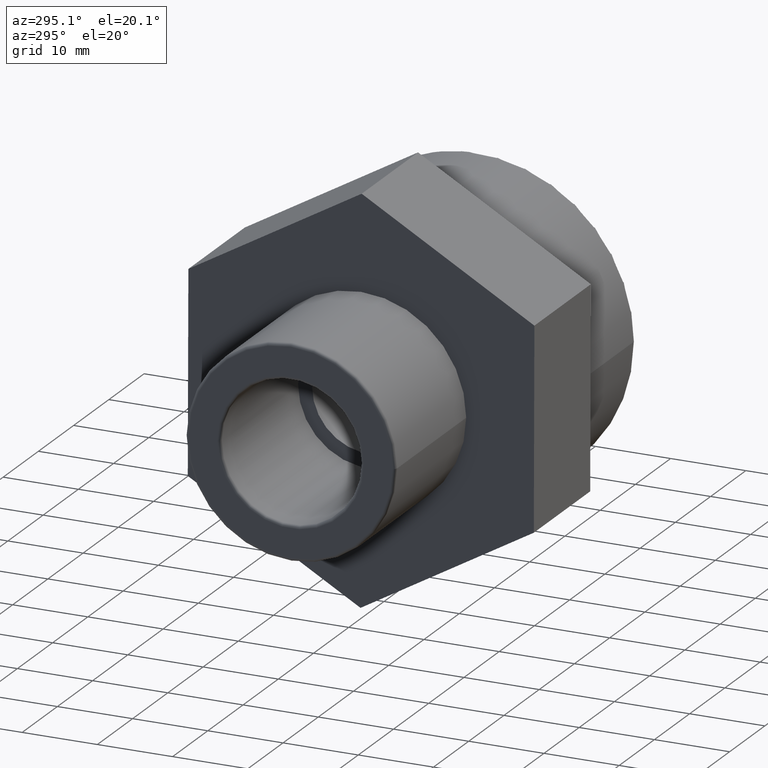
[diagram: clean part render]
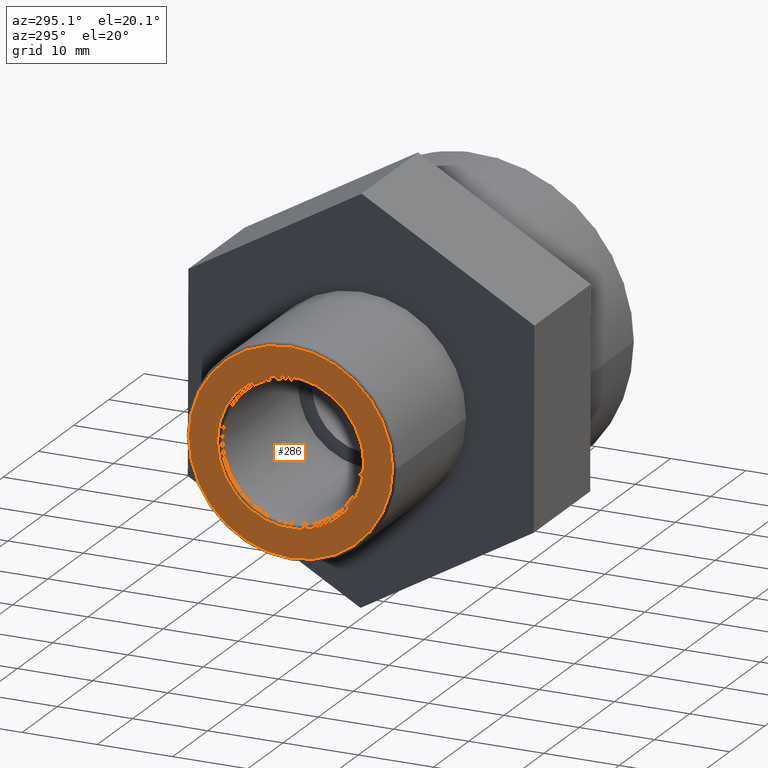
[diagram: same view with one face highlighted and labeled with its STEP entity id]
A machine part, auxiliary view. The second image highlights one B-rep face of the part: STEP entity #286.
In plain terms, the highlighted planar face has unit normal (-1, -0, 0).
Its self-contained STEP definition (entity closure, byte-faithful):
#57=PLANE('',#317);
#74=FACE_BOUND('',#117,.T.);
#89=FACE_OUTER_BOUND('',#116,.T.);
#116=EDGE_LOOP('',(#224));
#117=EDGE_LOOP('',(#225));
#146=CIRCLE('',#315,9.7346);
#148=CIRCLE('',#318,13.55415);
#160=VERTEX_POINT('',#447);
#162=VERTEX_POINT('',#452);
#186=EDGE_CURVE('',#160,#160,#146,.T.);
#188=EDGE_CURVE('',#162,#162,#148,.T.);
#224=ORIENTED_EDGE('',*,*,#188,.F.);
#225=ORIENTED_EDGE('',*,*,#186,.F.);
#286=ADVANCED_FACE('',(#89,#74),#57,.T.);
#315=AXIS2_PLACEMENT_3D('',#448,#364,#365);
#317=AXIS2_PLACEMENT_3D('',#451,#368,#369);
#318=AXIS2_PLACEMENT_3D('',#453,#370,#371);
#364=DIRECTION('center_axis',(-1.,-1.83697019872103E-16,0.));
#365=DIRECTION('ref_axis',(-1.83697019872103E-16,1.,6.12323399573677E-17));
#368=DIRECTION('center_axis',(-1.,-1.83697019872103E-16,0.));
#369=DIRECTION('ref_axis',(0.,0.,1.));
#370=DIRECTION('center_axis',(1.,1.83697019872103E-16,0.));
#371=DIRECTION('ref_axis',(-1.83697019872103E-16,1.,6.12323399573677E-17));
#447=CARTESIAN_POINT('',(-26.5,-9.7346,5.96072336548992E-16));
#448=CARTESIAN_POINT('Origin',(-26.5,2.1570415377137E-31,0.));
#451=CARTESIAN_POINT('Origin',(-26.5,-9.3155,0.));
#452=CARTESIAN_POINT('',(-26.5,-13.55415,-2.48985696189947E-15));
#453=CARTESIAN_POINT('Origin',(-26.5,-3.08148791101958E-32,0.));